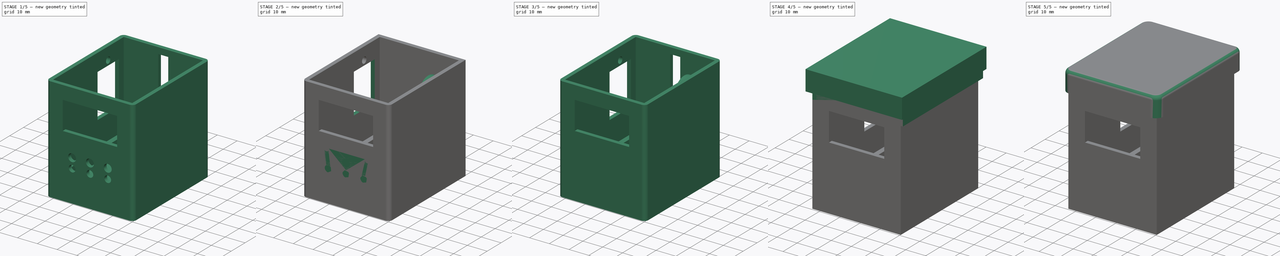
[diagram: build sequence overview — one tinted view per stage of 5, left to right]
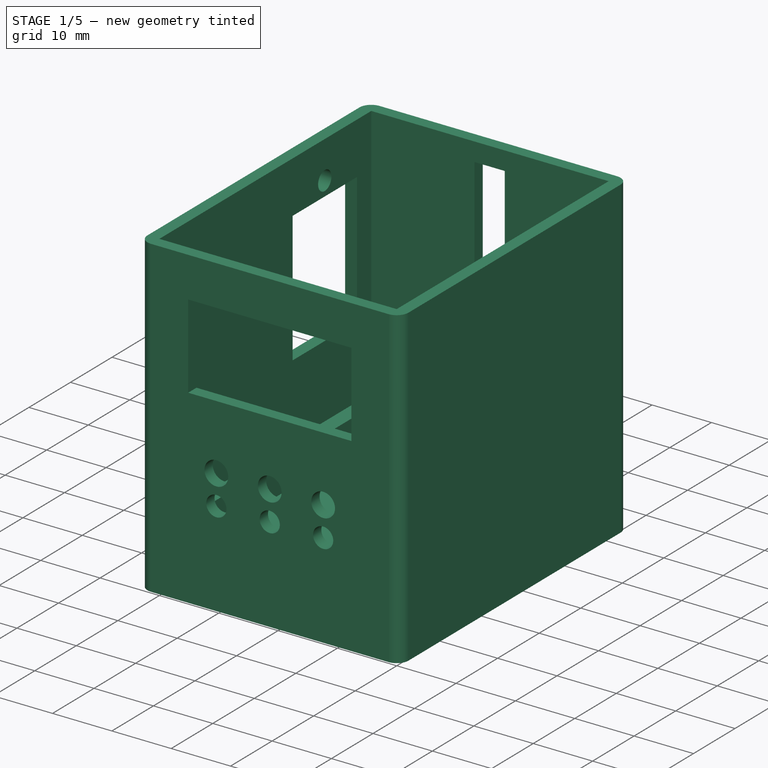
[diagram: stage 1 of 5 — iso view after this stage's code; geometry added in this stage tinted green]
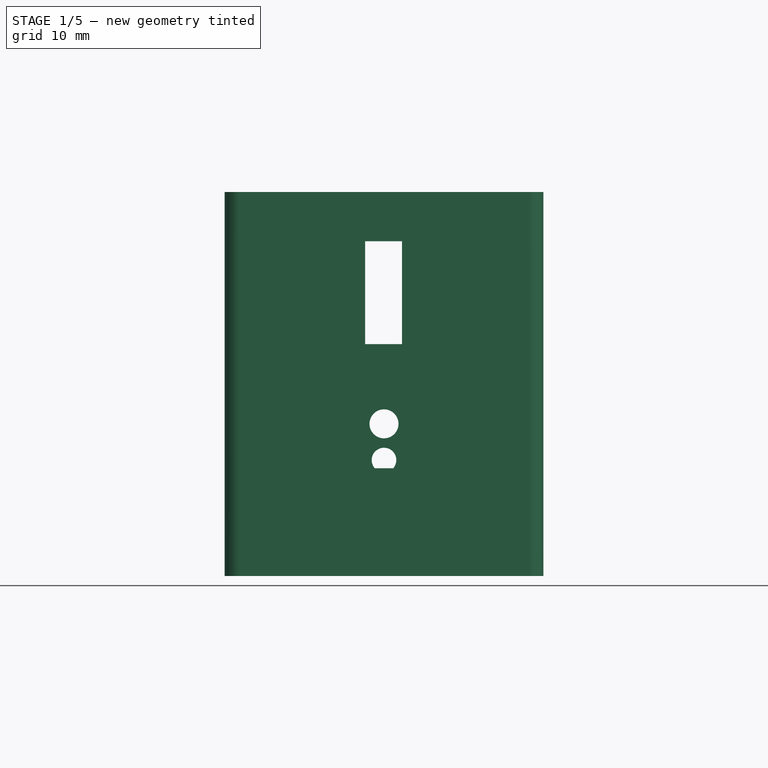
[diagram: stage 1 of 5 — front view after this stage's code; geometry added in this stage tinted green]
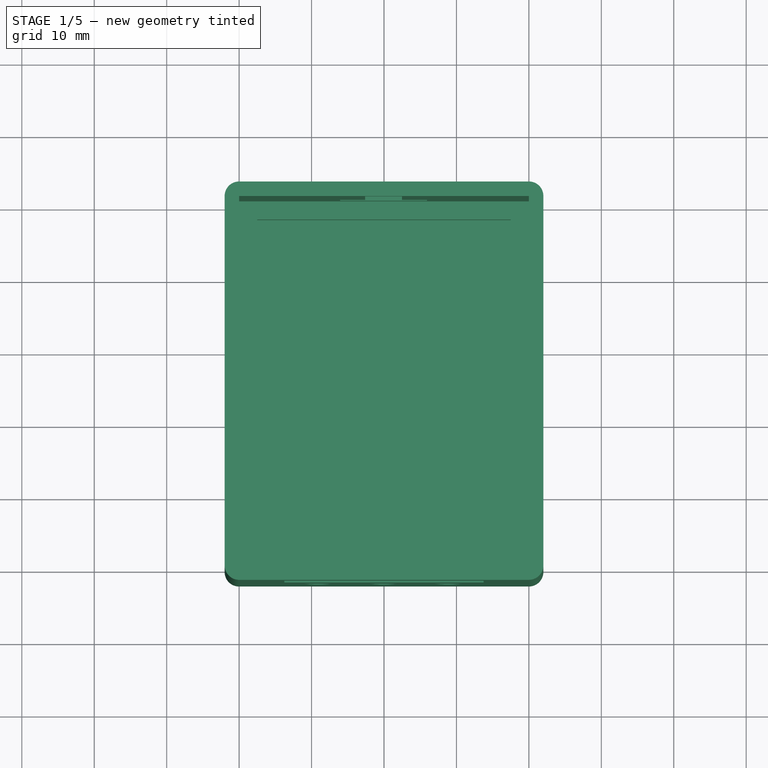
[diagram: stage 1 of 5 — top view after this stage's code; geometry added in this stage tinted green]
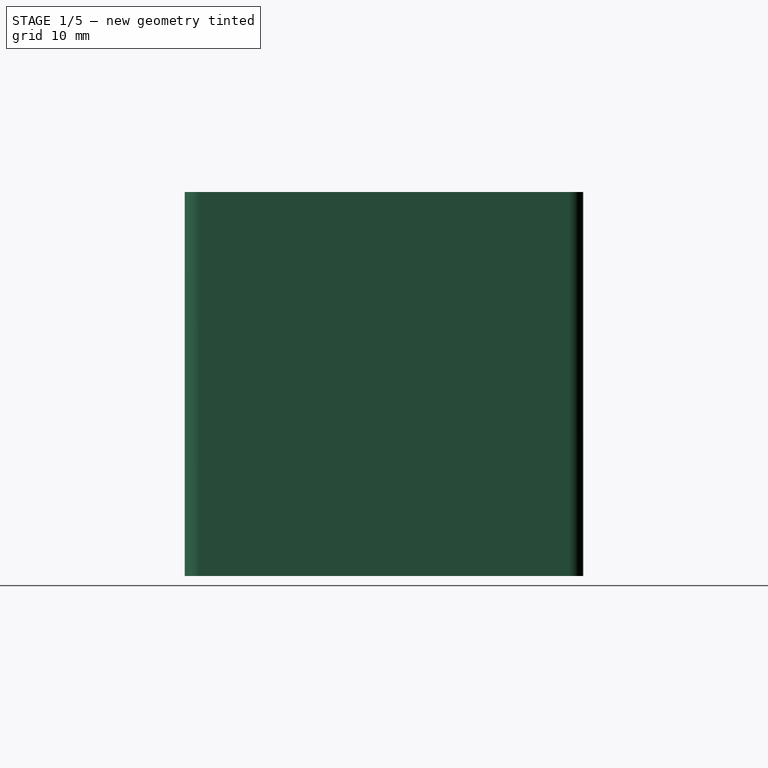
[diagram: stage 1 of 5 — right view after this stage's code; geometry added in this stage tinted green]
FCSTD DOCUMENT  (FreeCAD 0.16R6712 (Git))
Label: carcasa
License: CC-BY 3.0
LicenseURL: http://creativecommons.org/licenses/by/3.0/
objects: Sketcher::SketchObject×16, PartDesign::Pocket×9, PartDesign::Fillet×9, PartDesign::Pad×7, Part::Feature×4, Part::Box×2, App::DocumentObjectGroup×2, Part::Cut×1, PartDesign::Chamfer×1
note: 65 computed .brp shape members not serialized (recipe doc carries the construction recipe); baked Part::Feature solids carry a one-line shape summary decoded from their .brp

FEATURE [Sketcher::SketchObject] Sketch
  sketch-geometry (4):
    g0: LineSegment StartX=0 StartY=51 StartZ=0 EndX=40 EndY=51 EndZ=0
    g1: LineSegment StartX=40 StartY=51 StartZ=0 EndX=40 EndY=0 EndZ=0
    g2: LineSegment StartX=40 StartY=0 StartZ=0 EndX=0 EndY=0 EndZ=0
    g3: LineSegment StartX=0 StartY=0 StartZ=0 EndX=0 EndY=51 EndZ=0
  constraints (11):
    c: Coincident(g0,g1)
    c: Coincident(g1,g2)
    c: Coincident(g2,g3)
    c: Coincident(g3,g0)
    c: Horizontal(g0)
    c: Horizontal(g2)
    c: Vertical(g1)
    c: Vertical(g3)
    c: DistanceY(g3) = 51
    c: DistanceX(g0) = 40
    c: Coincident(g2,g-1)
FEATURE [PartDesign::Pad] Pad
  Length = 7
  Length2 = 100
  Sketch = -> Sketch
  Type = 0
FEATURE [Sketcher::SketchObject] Sketch001
  Placement = pos=(0,0,7) rot=(0,0,1;0rad)
  Support = -> Pad [Face6]
  sketch-geometry (4):
    g0: LineSegment StartX=2.5 StartY=48.5 StartZ=0 EndX=37.5 EndY=48.5 EndZ=0
    g1: LineSegment StartX=37.5 StartY=48.5 StartZ=0 EndX=37.5 EndY=2.5 EndZ=0
    g2: LineSegment StartX=37.5 StartY=2.5 StartZ=0 EndX=2.5 EndY=2.5 EndZ=0
    g3: LineSegment StartX=2.5 StartY=2.5 StartZ=0 EndX=2.5 EndY=48.5 EndZ=0
  constraints (12):
    c: Coincident(g0,g1)
    c: Coincident(g1,g2)
    c: Coincident(g2,g3)
    c: Coincident(g3,g0)
    c: Horizontal(g0)
    c: Horizontal(g2)
    c: Vertical(g1)
    c: Vertical(g3)
    c: DistanceY(g1) = -46
    c: DistanceX(g0) = 35
    c: DistanceY(g-1,g1) = 2.5
    c: DistanceX(g-2,g2) = 2.5
FEATURE [PartDesign::Pocket] Pocket
  Length = 5
  Sketch = -> Sketch001
  Type = 0
FEATURE [Sketcher::SketchObject] Sketch002
  ExternalGeometry = -> [Pocket]
  Placement = pos=(0,0,0) rot=(1,0,0;3.14159rad)
  Support = -> Pocket [Face4]
  sketch-geometry (4):
    g0: LineSegment StartX=-2 StartY=2 StartZ=0 EndX=42 EndY=2 EndZ=0
    g1: LineSegment StartX=42 StartY=2 StartZ=0 EndX=42 EndY=-53 EndZ=0
    g2: LineSegment StartX=42 StartY=-53 StartZ=0 EndX=-2 EndY=-53 EndZ=0
    g3: LineSegment StartX=-2 StartY=-53 StartZ=0 EndX=-2 EndY=2 EndZ=0
  constraints (12):
    c: Coincident(g0,g1)
    c: Coincident(g1,g2)
    c: Coincident(g2,g3)
    c: Coincident(g3,g0)
    c: Horizontal(g0)
    c: Horizontal(g2)
    c: Vertical(g1)
    c: Vertical(g3)
    c: Distance(g-3,g2) = 2
    c: Distance(g-1,g0) = 2
    c: Distance(g-3,g3) = 2
    c: Distance(g-4,g1) = 2
FEATURE [PartDesign::Pad] Pad001
  Length = 3
  Length2 = 100
  Sketch = -> Sketch002
  Type = 0
FEATURE [Sketcher::SketchObject] Sketch003
  ExternalGeometry = -> [Pad001]
  Support = -> Pad001 [Face10]
  sketch-geometry (8):
    g0: LineSegment StartX=0 StartY=51 StartZ=0 EndX=40 EndY=51 EndZ=0
    g1: LineSegment StartX=40 StartY=51 StartZ=0 EndX=40 EndY=0 EndZ=0
    g2: LineSegment StartX=40 StartY=0 StartZ=0 EndX=0 EndY=0 EndZ=0
    g3: LineSegment StartX=0 StartY=0 StartZ=0 EndX=0 EndY=51 EndZ=0
    g4: LineSegment StartX=42 StartY=53 StartZ=0 EndX=-2 EndY=53 EndZ=0
    g5: LineSegment StartX=-2 StartY=53 StartZ=0 EndX=-2 EndY=-2 EndZ=0
    g6: LineSegment StartX=-2 StartY=-2 StartZ=0 EndX=42 EndY=-2 EndZ=0
    g7: LineSegment StartX=42 StartY=-2 StartZ=0 EndX=42 EndY=53 EndZ=0
  constraints (22):
    c: Coincident(g0,g1)
    c: Coincident(g1,g2)
    c: Coincident(g2,g3)
    c: Coincident(g3,g0)
    c: Horizontal(g0)
    c: Horizontal(g2)
    c: Vertical(g1)
    c: Vertical(g3)
    c: Coincident(g0,g-4)
    c: Coincident(g1,g-4)
    c: Coincident(g-5,g0)
    c: Coincident(g4,g5)
    c: Coincident(g5,g6)
    c: Coincident(g6,g7)
    c: Coincident(g7,g4)
    c: Horizontal(g4)
    c: Horizontal(g6)
    c: Vertical(g5)
    c: Vertical(g7)
    c: Coincident(g5,g-9)
    c: Coincident(g6,g-9)
    c: Coincident(g-8,g4)
FEATURE [PartDesign::Pad] Pad002  label="base"
  Length = 50
  Length2 = 100
  Sketch = -> Sketch003
  Type = 0
FEATURE [Sketcher::SketchObject] Sketch004
  ExternalGeometry = -> [Pad002]
  Placement = pos=(0,-2,0) rot=(1,0,0;1.5708rad)
  Support = -> Pad002 [Face14]
  sketch-geometry (13):
    g0: LineSegment StartX=6.25 StartY=43.2 StartZ=0 EndX=33.75 EndY=43.2 EndZ=0
    g1: LineSegment StartX=33.75 StartY=43.2 StartZ=0 EndX=33.75 EndY=24 EndZ=0
    g2: LineSegment StartX=33.75 StartY=24 StartZ=0 EndX=6.25 EndY=24 EndZ=0
    g3: LineSegment StartX=6.25 StartY=24 StartZ=0 EndX=6.25 EndY=43.2 EndZ=0
    g4: LineSegment [constr] StartX=-2 StartY=43.2 StartZ=0 EndX=6.25 EndY=43.2 EndZ=0
    g5: LineSegment [constr] StartX=33.75 StartY=43.2 StartZ=0 EndX=42 EndY=43.2 EndZ=0
    g6: Circle CenterX=11.5919 CenterY=22.0259 CenterZ=0 NormalX=0 NormalY=0 NormalZ=1 Radius=1.3
    g7: Circle CenterX=32.2919 CenterY=22.0259 CenterZ=0 NormalX=0 NormalY=0 NormalZ=1 Radius=1.3
    g8: LineSegment [constr] StartX=0 StartY=22.0259 StartZ=0 EndX=42 EndY=22.0259 EndZ=0
    g9: LineSegment [constr] StartX=0 StartY=45.4259 StartZ=0 EndX=42 EndY=45.4259 EndZ=0
    g10: Circle CenterX=11.5919 CenterY=45.4259 CenterZ=0 NormalX=0 NormalY=0 NormalZ=1 Radius=1.3
    g11: Circle CenterX=32.2919 CenterY=45.4259 CenterZ=0 NormalX=0 NormalY=0 NormalZ=1 Radius=1.3
    g12: LineSegment [constr] StartX=11.5919 StartY=50 StartZ=0 EndX=11.5919 EndY=-3 EndZ=0
  constraints (41):
    c: Coincident(g0,g1)
    c: Coincident(g1,g2)
    c: Coincident(g2,g3)
    c: Coincident(g3,g0)
    c: Horizontal(g0)
    c: Horizontal(g2)
    c: Vertical(g1)
    c: Vertical(g3)
    c: DistanceY(g1) = -19.2
    c: DistanceX(g2) = -27.5
    c: Horizontal(g4)
    c: Horizontal(g5)
    c: Equal(g5,g4)
    c: PointOnObject(g5,g-4)
    c: PointOnObject(g4,g-3)
    c: Coincident(g4,g0)
    c: Coincident(g5,g0)
    c: Horizontal(g8)
    c: PointOnObject(g8,g-2)
    c: PointOnObject(g7,g8)
    c: PointOnObject(g6,g8)
    c: Distance(g6,g7) = 20.7
    c: Horizontal(g9)
    c: PointOnObject(g9,g-2)
    c: PointOnObject(g11,g9)
    c: PointOnObject(g10,g9)
    c: Distance(g10,g11) = 20.7
    c: Vertical(g12)
    c: PointOnObject(g6,g12)
    c: PointOnObject(g10,g12)
    c: Distance(g10,g6) = 23.4
    c: PointOnObject(g9,g-4)
    c: PointOnObject(g8,g-4)
    c: PointOnObject(g12,g-5)
    c: PointOnObject(g12,g-6)
    c: Equal(g6,g7)
    c: Equal(g7,g11)
    c: Equal(g11,g10)
    c: Radius(g11) = 1.3
    c: Distance(g2,g-5) = 27
    c: Distance(g8,g-5) = 25.0259
FEATURE [PartDesign::Pocket] Pocket001  label="Pantalla"
  Length = 5
  Sketch = -> Sketch004
  Type = 0
FEATURE [App::DocumentObjectGroup] Grupo001  label="Caja"
  Group = -> [Pad,Pocket,Pad001,Pad002,Pocket001,Pocket002,Pocket003,Pocket003001,Fillet,Fillet001,Fillet002,Fillet003,Pocket003002,Pocket003003,Pocket003004,Pad003,Pad003002]
FEATURE [Part::Feature] Pad003002001  label="redimensionPantalla001"
  shape: bbox 44 x 55 x 53 mm, 44 faces (baked)
FEATURE [Sketcher::SketchObject] Sketch012
  ExternalGeometry = -> [Pocket001]
  Placement = pos=(0,-2,0) rot=(1,0,0;1.5708rad)
  Support = -> Pad003002001 [Face35]
  sketch-geometry (4):
    g0: LineSegment [constr] StartX=0 StartY=18 StartZ=0 EndX=42 EndY=18 EndZ=0
    g1: Circle CenterX=11 CenterY=18 CenterZ=0 NormalX=0 NormalY=0 NormalZ=1 Radius=2
    g2: Circle CenterX=20 CenterY=18 CenterZ=0 NormalX=0 NormalY=0 NormalZ=1 Radius=2
    g3: Circle CenterX=29 CenterY=18 CenterZ=0 NormalX=0 NormalY=0 NormalZ=1 Radius=2
  constraints (13):
    c: Horizontal(g0)
    c: PointOnObject(g0,g-3)
    c: PointOnObject(g0,g-2)
    c: Equal(g3,g2)
    c: Equal(g2,g1)
    c: PointOnObject(g3,g0)
    c: PointOnObject(g2,g0)
    c: PointOnObject(g1,g0)
    c: Radius(g3) = 2
    c: Distance(g1,g0) = 11
    c: Distance(g1,g2) = 9
    c: Distance(g2,g3) = 9
    c: Distance(g0,g-3) = 18
FEATURE [PartDesign::Pocket] Pocket003005  label="reubicacionBotonera"
  Length = 5
  Sketch = -> Sketch012
  Type = 0
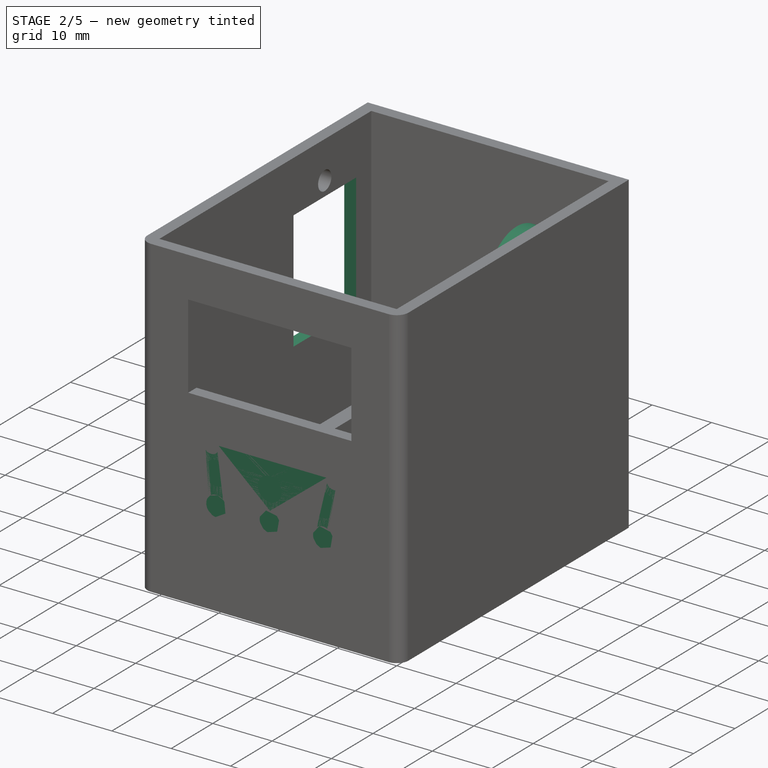
[diagram: stage 2 of 5 — iso view after this stage's code; geometry added in this stage tinted green]
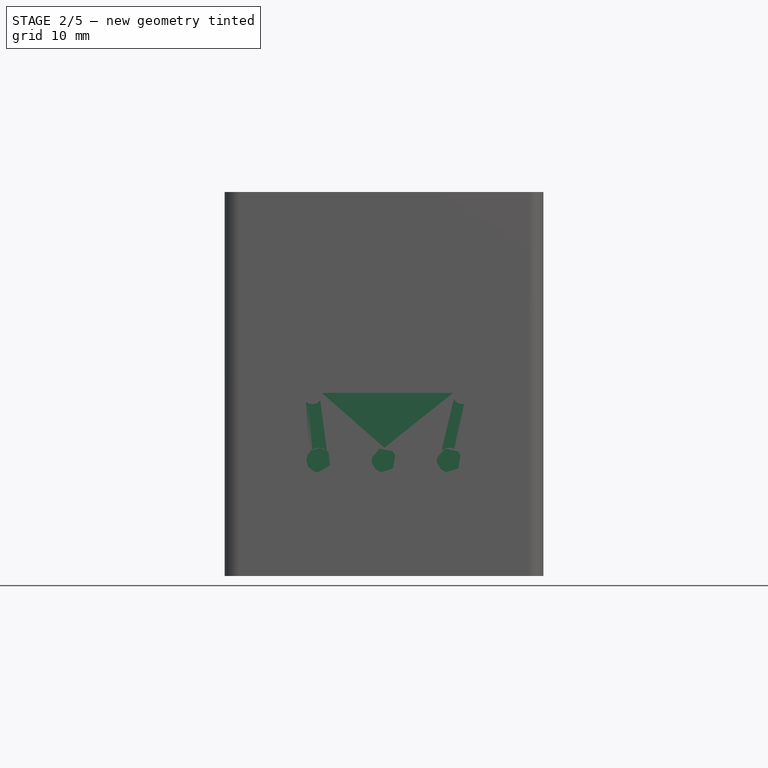
[diagram: stage 2 of 5 — front view after this stage's code; geometry added in this stage tinted green]
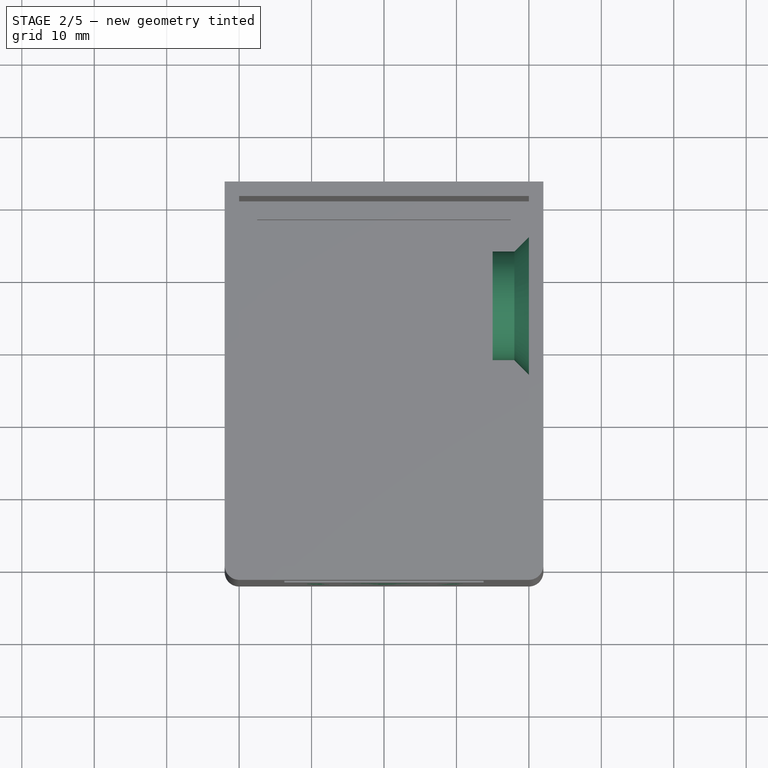
[diagram: stage 2 of 5 — top view after this stage's code; geometry added in this stage tinted green]
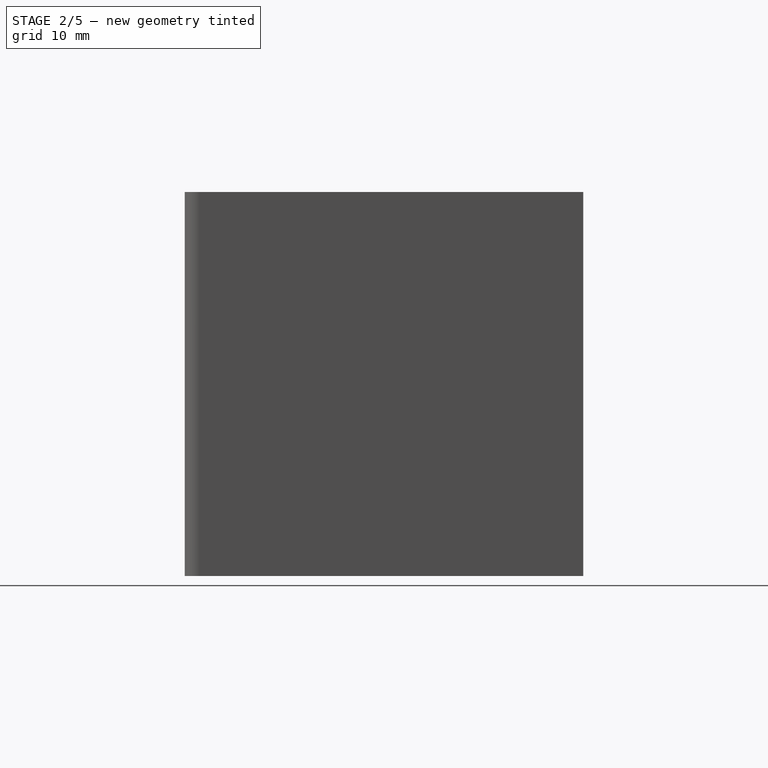
[diagram: stage 2 of 5 — right view after this stage's code; geometry added in this stage tinted green]
FEATURE [Part::Feature] Pocket003001  label="Pocket004"
  shape: bbox 44 x 55 x 53 mm, 32 faces (baked)
FEATURE [PartDesign::Fillet] Fillet
  Base = -> Pocket003001 [Edge83]
  Radius = 2
FEATURE [PartDesign::Fillet] Fillet001
  Base = -> Fillet [Edge7]
  Radius = 2
FEATURE [Sketcher::SketchObject] Sketch013
  ExternalGeometry = -> [Pocket003005]
  Placement = pos=(0,-2,0) rot=(1,0,0;1.5708rad)
  Support = -> Pocket003005 [Face9]
  sketch-geometry (3):
    g0: Circle CenterX=11 CenterY=13 CenterZ=0 NormalX=0 NormalY=0 NormalZ=1 Radius=1.7
    g1: Circle CenterX=20 CenterY=13 CenterZ=0 NormalX=0 NormalY=0 NormalZ=1 Radius=1.7
    g2: Circle CenterX=29 CenterY=13 CenterZ=0 NormalX=0 NormalY=0 NormalZ=1 Radius=1.7
  constraints (6):
    c: Equal(g2,g1)
    c: Equal(g1,g0)
    c: Equal(g2,g-5)
    c: Coincident(g2,g-5)
    c: Coincident(g1,g-4)
    c: Coincident(g0,g-3)
FEATURE [PartDesign::Pad] Pad003002002  label="sustitucionBotonera"
  Length = 2
  Length2 = 100
  Reversed = true
  Sketch = -> Sketch013
  Type = 0
FEATURE [Sketcher::SketchObject] Sketch014
  ExternalGeometry = -> [Pad003002002]
  Placement = pos=(40,0,0) rot=(0.57735,-0.57735,-0.57735;2.0944rad)
  Support = -> Pad003002002 [Face39]
  sketch-geometry (2):
    g0: Circle CenterX=-36 CenterY=40 CenterZ=0 NormalX=0 NormalY=0 NormalZ=1 Radius=6.5
    g1: Circle CenterX=-36 CenterY=40 CenterZ=0 NormalX=0 NormalY=0 NormalZ=1 Radius=7.5
  constraints (5):
    c: Coincident(g1,g0)
    c: Radius(g0) = 6.5
    c: Radius(g1) = 7.5
    c: Distance(g0,g-3) = 10
    c: Distance(g0,g-4) = 15
FEATURE [PartDesign::Pad] Pad003002003  label="piezo"
  Length = 5
  Length2 = 100
  Sketch = -> Sketch014
  Type = 0
FEATURE [Sketcher::SketchObject] Sketch015
  ExternalGeometry = -> [Pad003002003]
  Placement = pos=(40,0,0) rot=(0.57735,-0.57735,-0.57735;2.0944rad)
  Support = -> Pad003002003 [Face54]
  sketch-geometry (1):
    g0: Circle CenterX=-36 CenterY=40 CenterZ=0 NormalX=0 NormalY=0 NormalZ=1 Radius=2
  constraints (2):
    c: Coincident(g0,g-3)
    c: Radius(g0) = 2
FEATURE [PartDesign::Pocket] Pocket003006  label="salidaSonido"
  Length = 5
  Sketch = -> Sketch015
  Type = 0
FEATURE [PartDesign::Chamfer] Chamfer  label="indicadoAcustico"
  Base = -> Pocket003006 [Edge112]
  Size = 2
FEATURE [Part::Feature] Chamfer001
  shape: bbox 44 x 55 x 53 mm, 50 faces (baked)
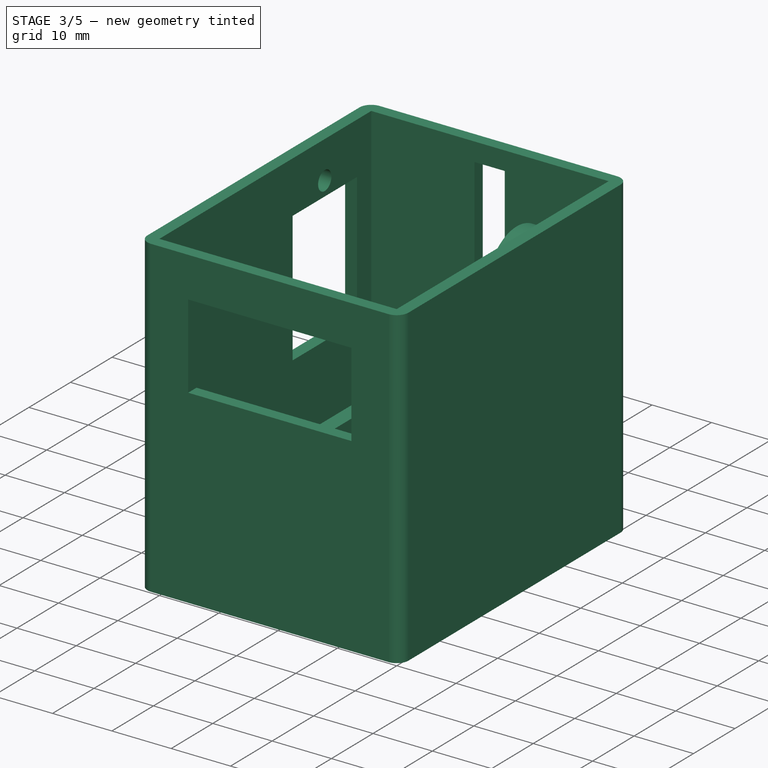
[diagram: stage 3 of 5 — iso view after this stage's code; geometry added in this stage tinted green]
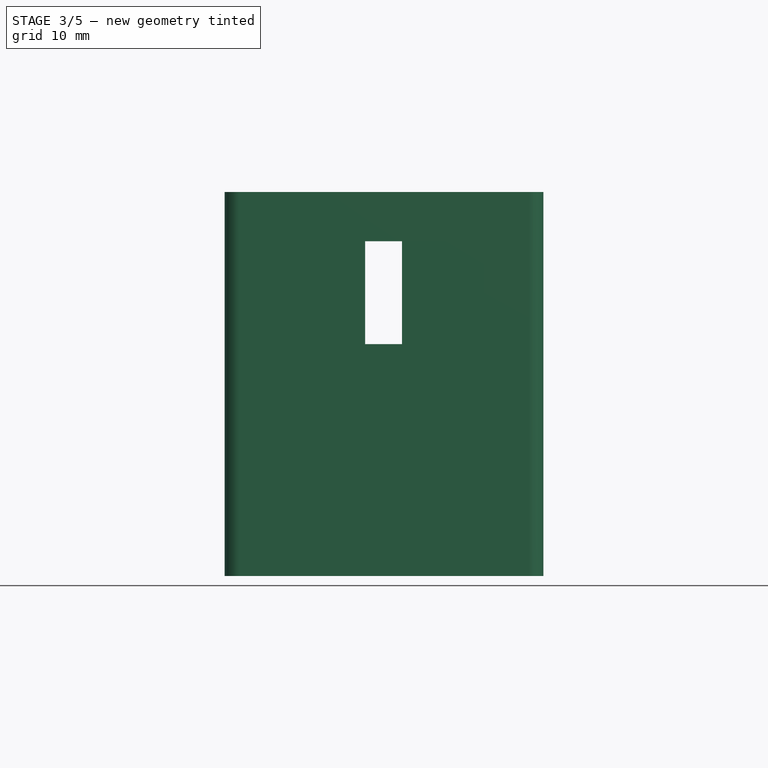
[diagram: stage 3 of 5 — front view after this stage's code; geometry added in this stage tinted green]
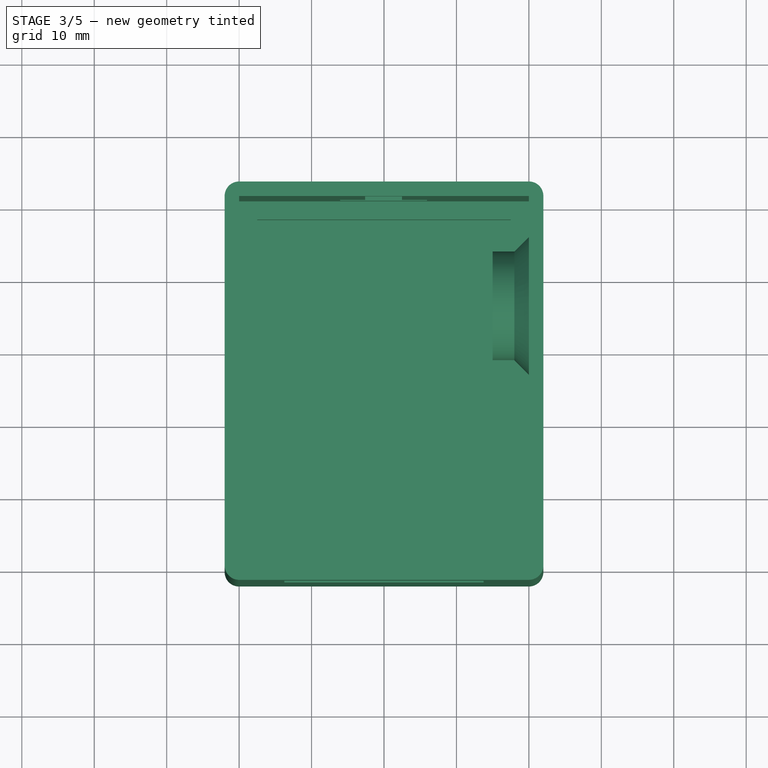
[diagram: stage 3 of 5 — top view after this stage's code; geometry added in this stage tinted green]
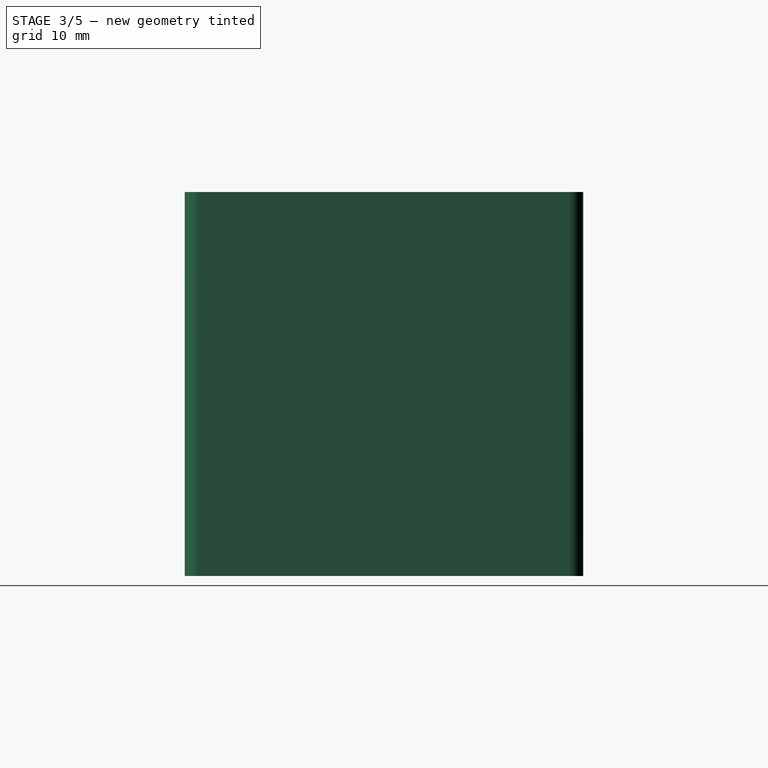
[diagram: stage 3 of 5 — right view after this stage's code; geometry added in this stage tinted green]
FEATURE [PartDesign::Fillet] Fillet002
  Base = -> Fillet001 [Edge25]
  Radius = 2
FEATURE [PartDesign::Fillet] Fillet003
  Base = -> Fillet002 [Edge15]
  Radius = 2
FEATURE [Sketcher::SketchObject] Sketch007
  Placement = pos=(0,53,0) rot=(0,0.707107,0.707107;3.14159rad)
  Support = -> Fillet003 [Face2]
  sketch-geometry (4):
    g0: LineSegment StartX=-22.4916 StartY=46.8735 StartZ=0 EndX=-17.3916 EndY=46.8735 EndZ=0
    g1: LineSegment StartX=-17.3916 StartY=46.8735 StartZ=0 EndX=-17.3916 EndY=11.8735 EndZ=0
    g2: LineSegment StartX=-17.3916 StartY=11.8735 StartZ=0 EndX=-22.4916 EndY=11.8735 EndZ=0
    g3: LineSegment StartX=-22.4916 StartY=11.8735 StartZ=0 EndX=-22.4916 EndY=46.8735 EndZ=0
  constraints (11):
    c: Coincident(g0,g1)
    c: Coincident(g1,g2)
    c: Coincident(g2,g3)
    c: Coincident(g3,g0)
    c: Horizontal(g0)
    c: Horizontal(g2)
    c: Vertical(g1)
    c: Vertical(g3)
    c: DistanceX(g0) = 5.1
    c: DistanceY(g3) = 35
    c: DistanceY(g-1,g2) = 11.8735
FEATURE [PartDesign::Pocket] Pocket003002  label="leds"
  Length = 5
  Sketch = -> Sketch007
  Type = 0
FEATURE [App::DocumentObjectGroup] Grupo  label="Tapa"
  Group = -> [Cut,Fillet004,Fillet005,Fillet006,Fillet007,Fillet008]
FEATURE [Sketcher::SketchObject] Sketch008
  ExternalGeometry = -> [Pocket003002]
  Placement = pos=(0,53,0) rot=(0,0.707107,0.707107;3.14159rad)
  Support = -> Pocket003002 [Face2]
  sketch-geometry (6):
    g0: LineSegment StartX=-25.9416 StartY=18.8735 StartZ=0 EndX=-13.9416 EndY=18.8735 EndZ=0
    g1: LineSegment StartX=-13.9416 StartY=18.8735 StartZ=0 EndX=-13.9416 EndY=11.8735 EndZ=0
    g2: LineSegment StartX=-13.9416 StartY=11.8735 StartZ=0 EndX=-25.9416 EndY=11.8735 EndZ=0
    g3: LineSegment StartX=-25.9416 StartY=11.8735 StartZ=0 EndX=-25.9416 EndY=18.8735 EndZ=0
    g4: LineSegment [constr] StartX=-25.9416 StartY=11.8735 StartZ=0 EndX=-22.4916 EndY=11.8735 EndZ=0
    g5: LineSegment [constr] StartX=-17.3916 StartY=11.8735 StartZ=0 EndX=-13.9416 EndY=11.8735 EndZ=0
  constraints (18):
    c: Coincident(g0,g1)
    c: Coincident(g1,g2)
    c: Coincident(g2,g3)
    c: Coincident(g3,g0)
    c: Horizontal(g0)
    c: Horizontal(g2)
    c: Vertical(g1)
    c: Vertical(g3)
    c: DistanceX(g0) = 12
    c: DistanceY(g3) = 7
    c: Horizontal(g4)
    c: Horizontal(g5)
    c: Equal(g5,g4)
    c: PointOnObject(g5,g-4)
    c: PointOnObject(g4,g-3)
    c: Coincident(g5,g1)
    c: Coincident(g4,g2)
    c: Coincident(g4,g-3)
FEATURE [PartDesign::Pocket] Pocket003003  label="usb"
  Length = 5
  Sketch = -> Sketch008
  Type = 0
FEATURE [Sketcher::SketchObject] Sketch009
  Placement = pos=(-2,0,0) rot=(0.57735,-0.57735,-0.57735;2.0944rad)
  Support = -> Pocket003003 [Face5]
  sketch-geometry (5):
    g0: LineSegment StartX=-47.5675 StartY=41.2389 StartZ=0 EndX=-32.0675 EndY=41.2389 EndZ=0
    g1: LineSegment StartX=-32.0675 StartY=41.2389 StartZ=0 EndX=-32.0675 EndY=19.2389 EndZ=0
    g2: LineSegment StartX=-32.0675 StartY=19.2389 StartZ=0 EndX=-47.5675 EndY=19.2389 EndZ=0
    g3: LineSegment StartX=-47.5675 StartY=19.2389 StartZ=0 EndX=-47.5675 EndY=41.2389 EndZ=0
    g4: Circle CenterX=-39.8113 CenterY=43.6787 CenterZ=0 NormalX=0 NormalY=0 NormalZ=1 Radius=1.6
  constraints (11):
    c: Coincident(g0,g1)
    c: Coincident(g1,g2)
    c: Coincident(g2,g3)
    c: Coincident(g3,g0)
    c: Horizontal(g0)
    c: Horizontal(g2)
    c: Vertical(g1)
    c: Vertical(g3)
    c: DistanceY(g3) = 22
    c: DistanceX(g0) = 15.5
    c: Radius(g4) = 1.6
FEATURE [PartDesign::Pocket] Pocket003004  label="tolerancia_sensorTemp"
  Length = 5
  Sketch = -> Sketch009
  Type = 0
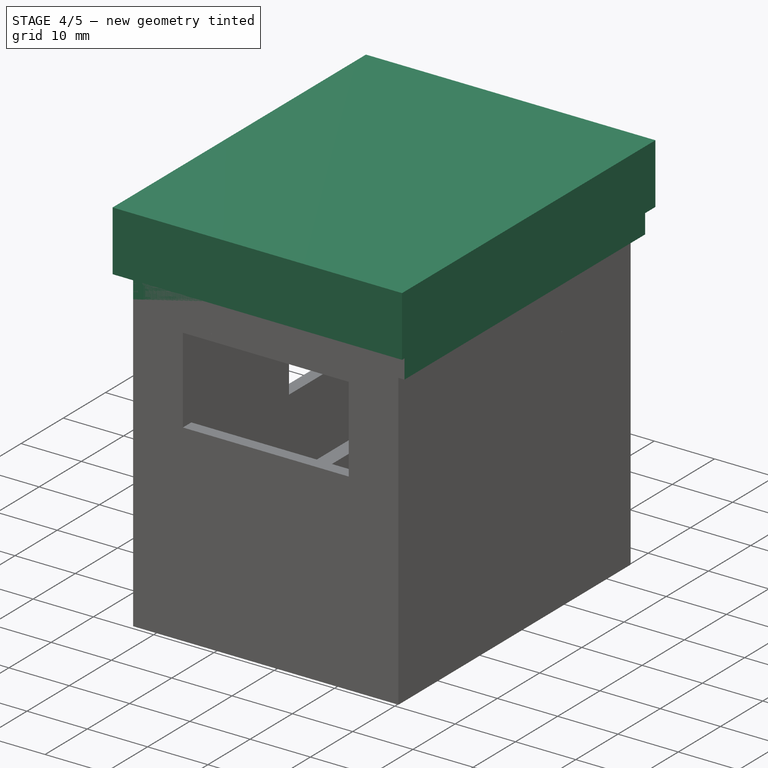
[diagram: stage 4 of 5 — iso view after this stage's code; geometry added in this stage tinted green]
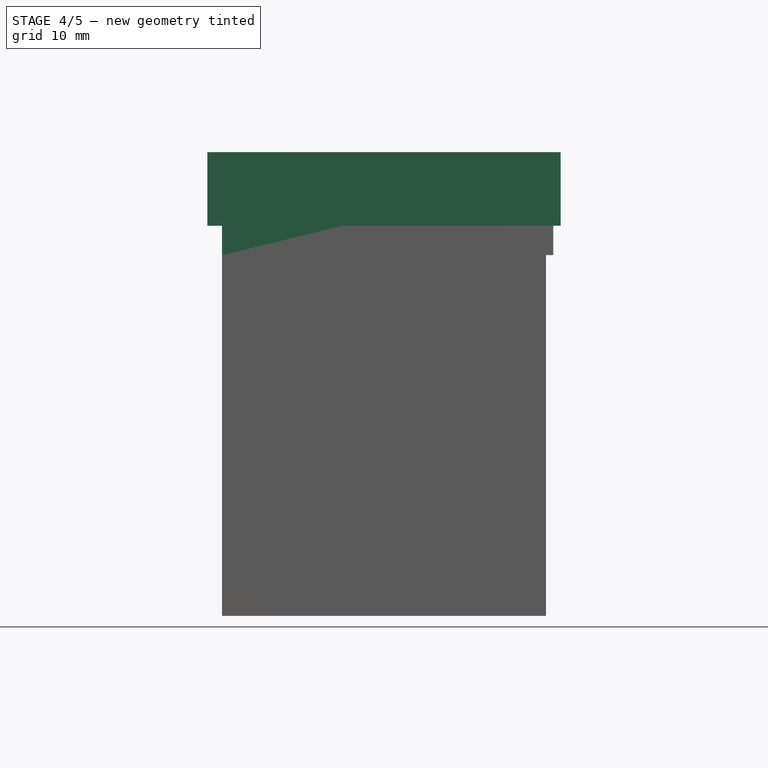
[diagram: stage 4 of 5 — front view after this stage's code; geometry added in this stage tinted green]
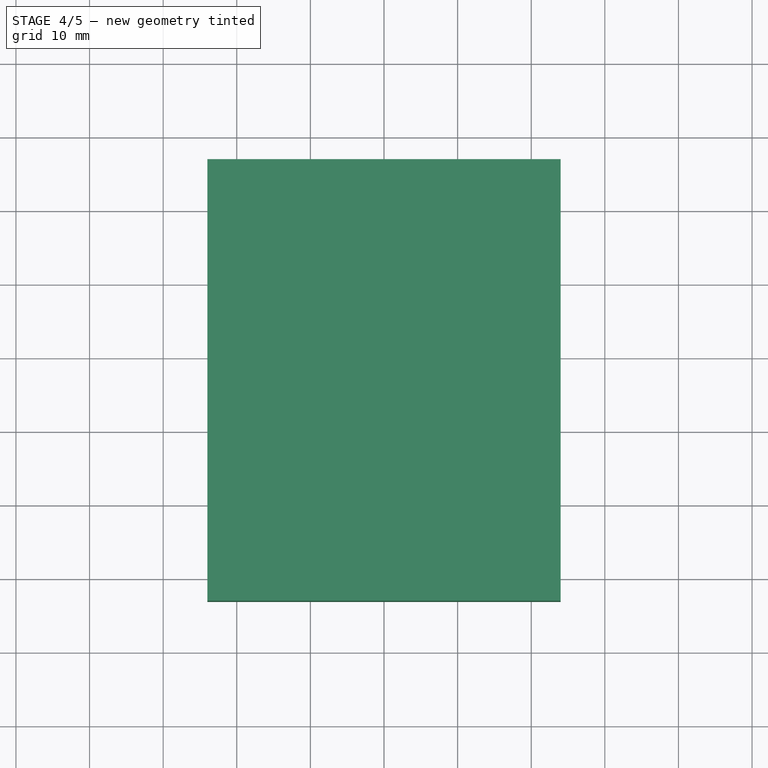
[diagram: stage 4 of 5 — top view after this stage's code; geometry added in this stage tinted green]
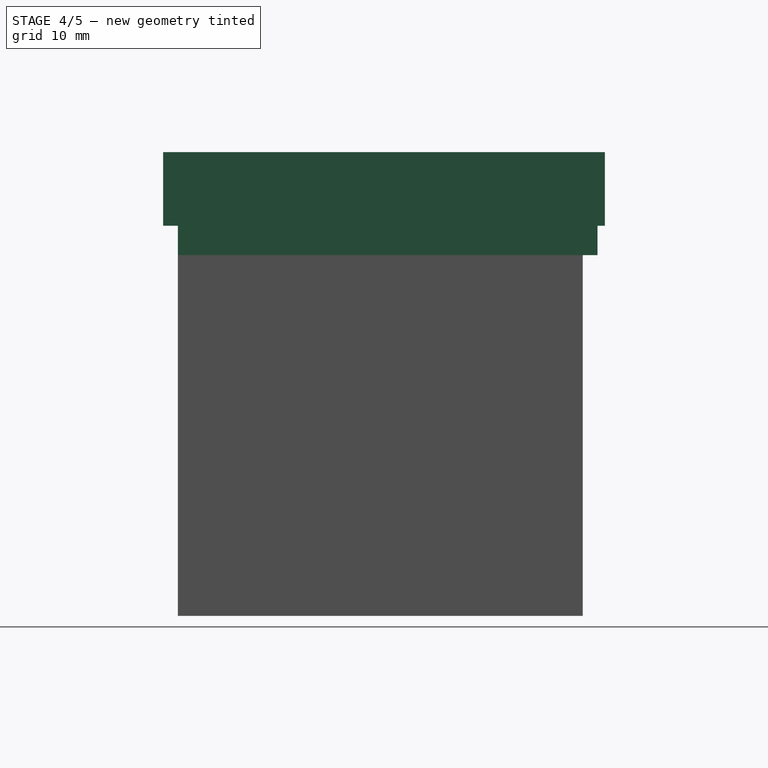
[diagram: stage 4 of 5 — right view after this stage's code; geometry added in this stage tinted green]
FEATURE [Sketcher::SketchObject] Sketch005
  ExternalGeometry = -> [Pocket001]
  Placement = pos=(0,-2,0) rot=(1,0,0;1.5708rad)
  Support = -> Pocket001 [Face22]
  sketch-geometry (4):
    g0: LineSegment [constr] StartX=0 StartY=13 StartZ=0 EndX=42 EndY=13 EndZ=0
    g1: Circle CenterX=11 CenterY=13 CenterZ=0 NormalX=0 NormalY=0 NormalZ=1 Radius=2
    g2: Circle CenterX=20 CenterY=13 CenterZ=0 NormalX=0 NormalY=0 NormalZ=1 Radius=2
    g3: Circle CenterX=29 CenterY=13 CenterZ=0 NormalX=0 NormalY=0 NormalZ=1 Radius=2
  constraints (13):
    c: Horizontal(g0)
    c: PointOnObject(g0,g-3)
    c: PointOnObject(g0,g-2)
    c: Equal(g3,g2)
    c: Equal(g2,g1)
    c: PointOnObject(g3,g0)
    c: PointOnObject(g2,g0)
    c: PointOnObject(g1,g0)
    c: Radius(g3) = 2
    c: Distance(g1,g0) = 11
    c: Distance(g1,g2) = 9
    c: Distance(g2,g3) = 9
    c: Distance(g0,g-3) = 13
FEATURE [PartDesign::Pocket] Pocket002  label="Botonera"
  Length = 5
  Sketch = -> Sketch005
  Type = 0
FEATURE [Sketcher::SketchObject] Sketch006
  Placement = pos=(-2,0,0) rot=(0.57735,-0.57735,-0.57735;2.0944rad)
  Support = -> Pocket002 [Face24]
  sketch-geometry (5):
    g0: LineSegment StartX=-47.5675 StartY=41.2389 StartZ=0 EndX=-32.0675 EndY=41.2389 EndZ=0
    g1: LineSegment StartX=-32.0675 StartY=41.2389 StartZ=0 EndX=-32.0675 EndY=19.2389 EndZ=0
    g2: LineSegment StartX=-32.0675 StartY=19.2389 StartZ=0 EndX=-47.5675 EndY=19.2389 EndZ=0
    g3: LineSegment StartX=-47.5675 StartY=19.2389 StartZ=0 EndX=-47.5675 EndY=41.2389 EndZ=0
    g4: Circle CenterX=-39.8113 CenterY=43.6787 CenterZ=0 NormalX=0 NormalY=0 NormalZ=1 Radius=1.6
  constraints (11):
    c: Coincident(g0,g1)
    c: Coincident(g1,g2)
    c: Coincident(g2,g3)
    c: Coincident(g3,g0)
    c: Horizontal(g0)
    c: Horizontal(g2)
    c: Vertical(g1)
    c: Vertical(g3)
    c: DistanceY(g3) = 22
    c: DistanceX(g0) = 15.5
    c: Radius(g4) = 1.6
FEATURE [PartDesign::Pocket] Pocket003  label="sensores"
  Length = 5
  Sketch = -> Sketch006
  Type = 0
FEATURE [Part::Box] Box
  Height = 10
  Length = 48
  Placement = pos=(-4,-4,50) rot=(0,0,1;0rad)
  Width = 60
FEATURE [Part::Box] Box001
  Height = 11
  Length = 45
  Placement = pos=(-2,-2,46) rot=(0,0,1;0rad)
  Width = 57
FEATURE [Sketcher::SketchObject] Sketch010
  ExternalGeometry = -> [Pocket003004]
  Placement = pos=(0,-2,0) rot=(1,0,0;1.5708rad)
  Support = -> Pocket003004 [Face9]
  sketch-geometry (8):
    g0: LineSegment StartX=6.25 StartY=47.7863 StartZ=0 EndX=33.75 EndY=47.7863 EndZ=0
    g1: LineSegment StartX=33.75 StartY=47.7863 StartZ=0 EndX=33.75 EndY=43.2 EndZ=0
    g2: LineSegment StartX=33.75 StartY=43.2 StartZ=0 EndX=6.25 EndY=43.2 EndZ=0
    g3: LineSegment StartX=6.25 StartY=43.2 StartZ=0 EndX=6.25 EndY=47.7863 EndZ=0
    g4: LineSegment StartX=6.25 StartY=24 StartZ=0 EndX=33.75 EndY=24 EndZ=0
    g5: LineSegment StartX=33.75 StartY=24 StartZ=0 EndX=33.75 EndY=19.6937 EndZ=0
    g6: LineSegment StartX=33.75 StartY=19.6937 StartZ=0 EndX=6.25 EndY=19.6937 EndZ=0
    g7: LineSegment StartX=6.25 StartY=19.6937 StartZ=0 EndX=6.25 EndY=24 EndZ=0
  constraints (20):
    c: Coincident(g0,g1)
    c: Coincident(g1,g2)
    c: Coincident(g2,g3)
    c: Coincident(g3,g0)
    c: Horizontal(g0)
    c: Horizontal(g2)
    c: Vertical(g1)
    c: Vertical(g3)
    c: Coincident(g4,g5)
    c: Coincident(g5,g6)
    c: Coincident(g6,g7)
    c: Coincident(g7,g4)
    c: Horizontal(g4)
    c: Horizontal(g6)
    c: Vertical(g5)
    c: Vertical(g7)
    c: Coincident(g4,g-4)
    c: Coincident(g4,g-4)
    c: Coincident(g1,g-3)
    c: Coincident(g2,g-3)
FEATURE [PartDesign::Pad] Pad003  label="SinSujeccionPantalla"
  Length = 2
  Length2 = 100
  Reversed = true
  Sketch = -> Sketch010
  Type = 0
FEATURE [Part::Feature] Pad003001  label="SinSujeccionPantalla001"
  shape: bbox 44 x 55 x 53 mm, 48 faces (baked)
FEATURE [Sketcher::SketchObject] Sketch011
  ExternalGeometry = -> [Pocket003004]
  Placement = pos=(0,-2,0) rot=(1,0,0;1.5708rad)
  Support = -> Pocket003004 [Face9]
  sketch-geometry (8):
    g0: LineSegment StartX=6.25 StartY=47.2 StartZ=0 EndX=33.75 EndY=47.2 EndZ=0
    g1: LineSegment StartX=33.75 StartY=47.2 StartZ=0 EndX=33.75 EndY=43.2 EndZ=0
    g2: LineSegment StartX=33.75 StartY=43.2 StartZ=0 EndX=6.25 EndY=43.2 EndZ=0
    g3: LineSegment StartX=6.25 StartY=43.2 StartZ=0 EndX=6.25 EndY=47.2 EndZ=0
    g4: LineSegment StartX=6.25 StartY=29 StartZ=0 EndX=33.75 EndY=29 EndZ=0
    g5: LineSegment StartX=33.75 StartY=29 StartZ=0 EndX=33.75 EndY=20.7259 EndZ=0
    g6: LineSegment StartX=33.75 StartY=20.7259 StartZ=0 EndX=6.25 EndY=20.7259 EndZ=0
    g7: LineSegment StartX=6.25 StartY=20.7259 StartZ=0 EndX=6.25 EndY=29 EndZ=0
  constraints (23):
    c: Coincident(g0,g1)
    c: Coincident(g1,g2)
    c: Coincident(g2,g3)
    c: Coincident(g3,g0)
    c: Horizontal(g0)
    c: Horizontal(g2)
    c: Vertical(g1)
    c: Vertical(g3)
    c: Coincident(g1,g-7)
    c: Coincident(g2,g-7)
    c: DistanceY(g3,g3) = 4
    c: Coincident(g4,g5)
    c: Coincident(g5,g6)
    c: Coincident(g6,g7)
    c: Coincident(g7,g4)
    c: Horizontal(g4)
    c: Horizontal(g6)
    c: Vertical(g5)
    c: Vertical(g7)
    c: Tangent(g6,g-5)
    c: PointOnObject(g-8,g7)
    c: PointOnObject(g-8,g5)
    c: Distance(g-8,g4) = 5
FEATURE [PartDesign::Pad] Pad003002  label="redimensionPantalla"
  Length = 2
  Length2 = 100
  Reversed = true
  Sketch = -> Sketch011
  Type = 0
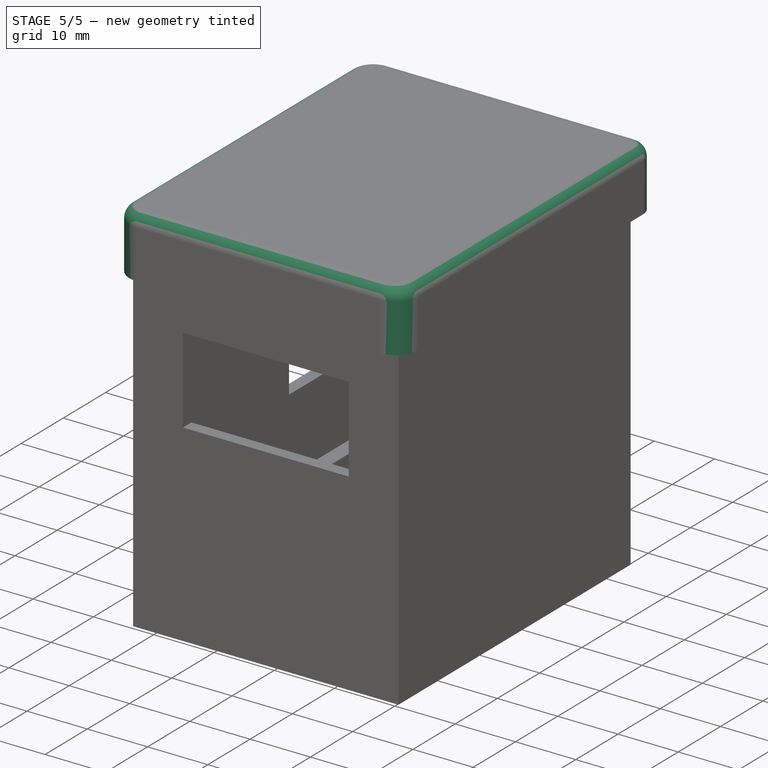
[diagram: stage 5 of 5 — iso view after this stage's code; geometry added in this stage tinted green]
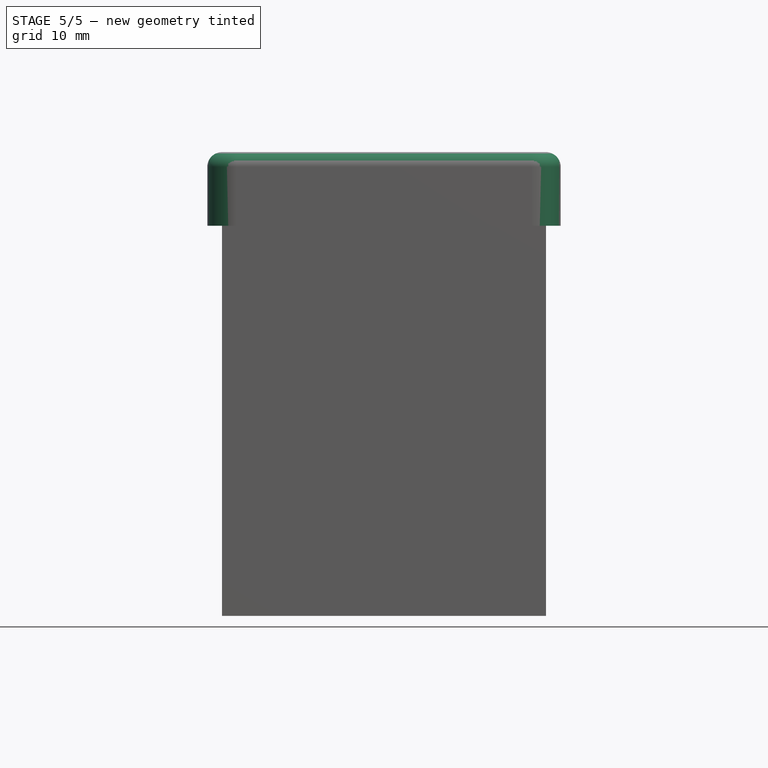
[diagram: stage 5 of 5 — front view after this stage's code; geometry added in this stage tinted green]
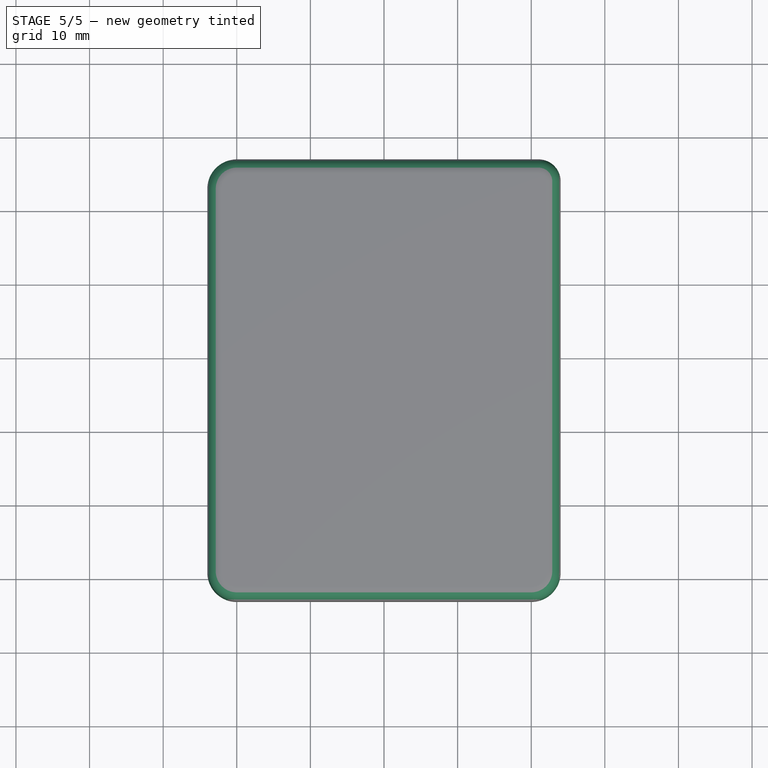
[diagram: stage 5 of 5 — top view after this stage's code; geometry added in this stage tinted green]
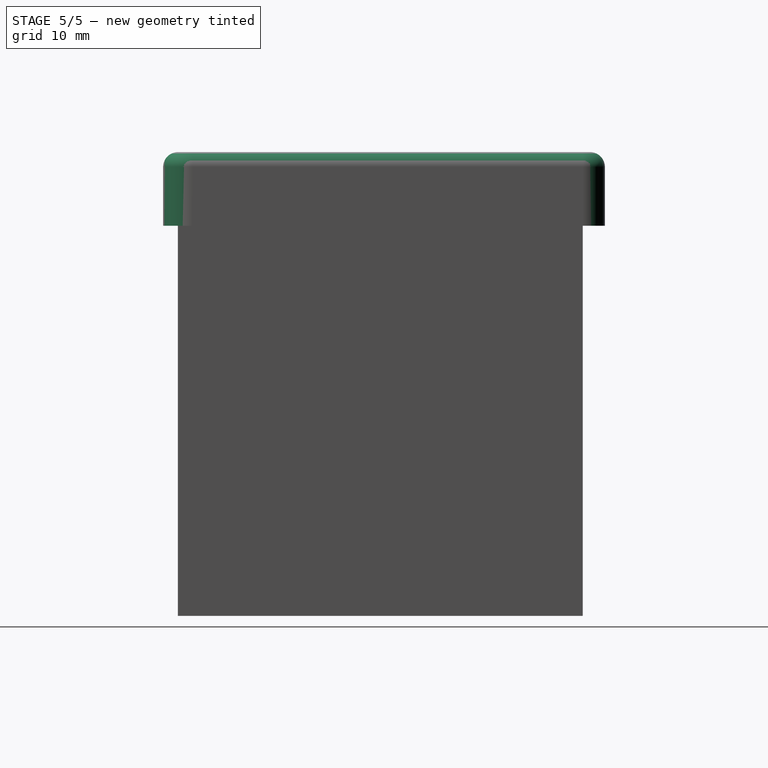
[diagram: stage 5 of 5 — right view after this stage's code; geometry added in this stage tinted green]
FEATURE [Part::Cut] Cut
  Base = -> Box
  Tool = -> Box001
FEATURE [PartDesign::Fillet] Fillet004
  Base = -> Cut [Edge6]
  Radius = 4
FEATURE [PartDesign::Fillet] Fillet005
  Base = -> Fillet004 [Edge3]
  Radius = 4
FEATURE [PartDesign::Fillet] Fillet006
  Base = -> Fillet005 [Edge21]
  Radius = 4
FEATURE [PartDesign::Fillet] Fillet007
  Base = -> Fillet006 [Edge19]
  Radius = 3
FEATURE [PartDesign::Fillet] Fillet008  label="Tapa001"
  Base = -> Fillet007 [Edge20]
  Radius = 2
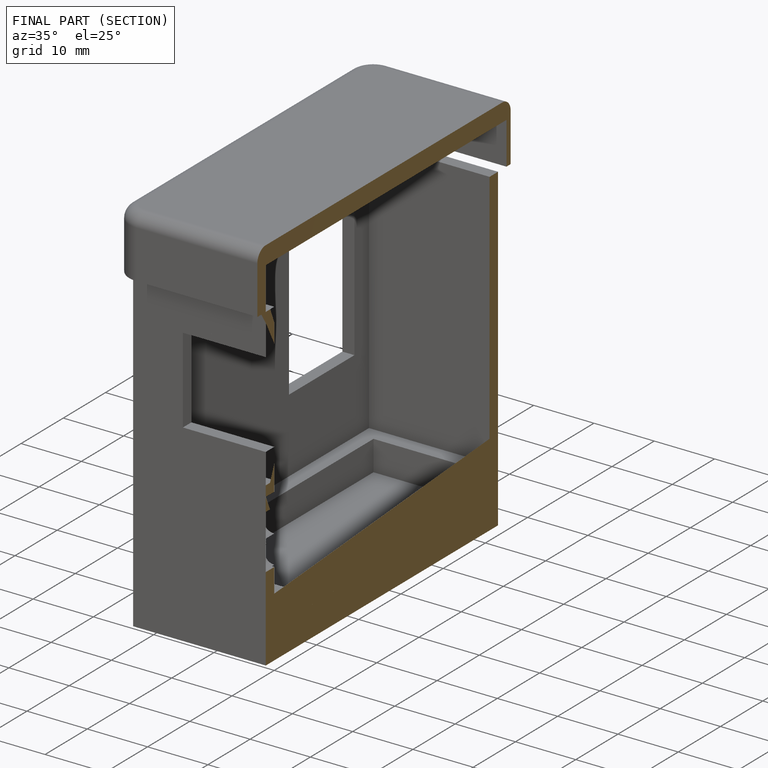
[diagram: finished part — half-section view (interior)]
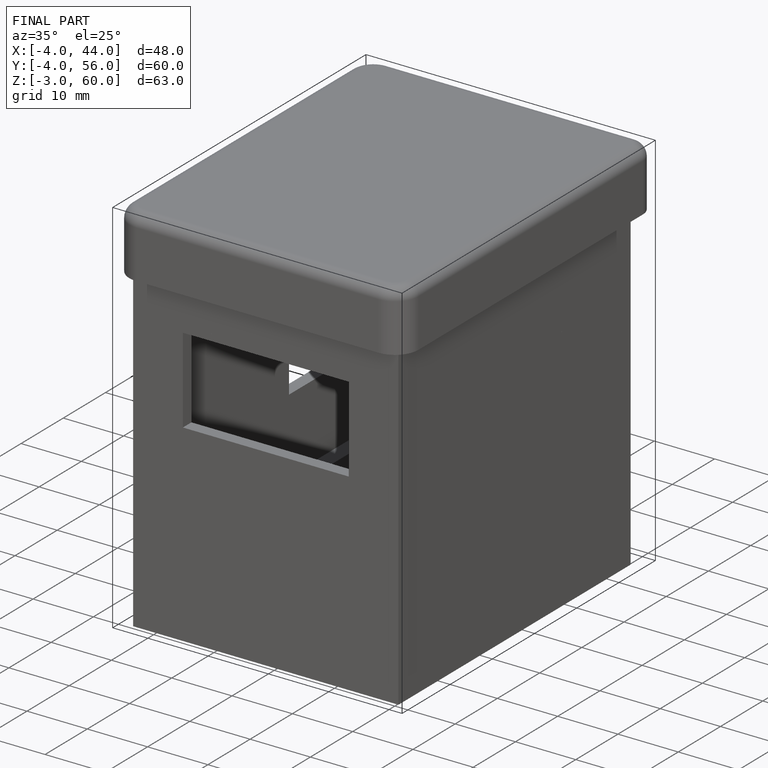
[diagram: finished part — iso view with bounding-box wireframe]
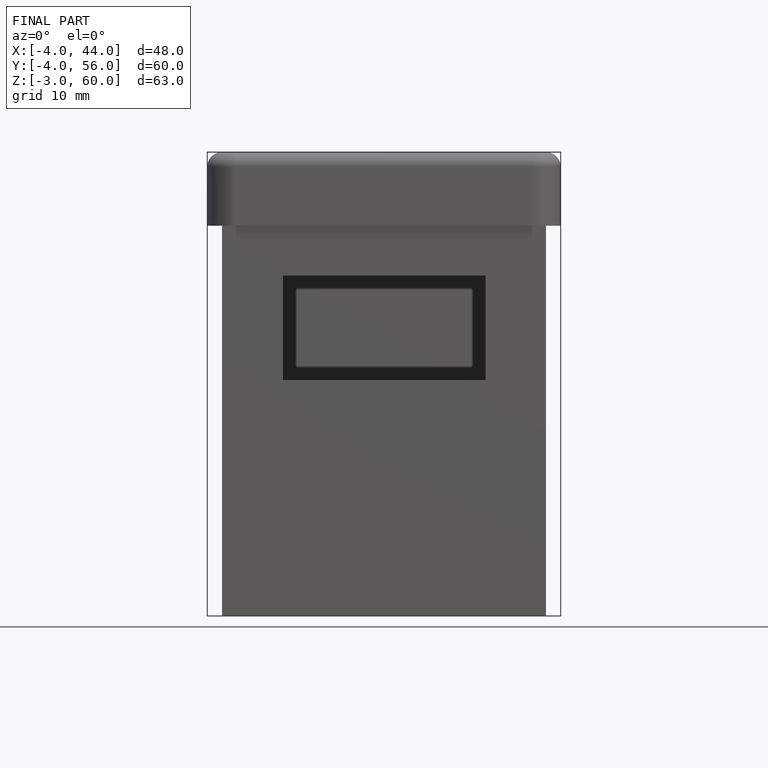
[diagram: finished part — front view with bounding-box wireframe]
